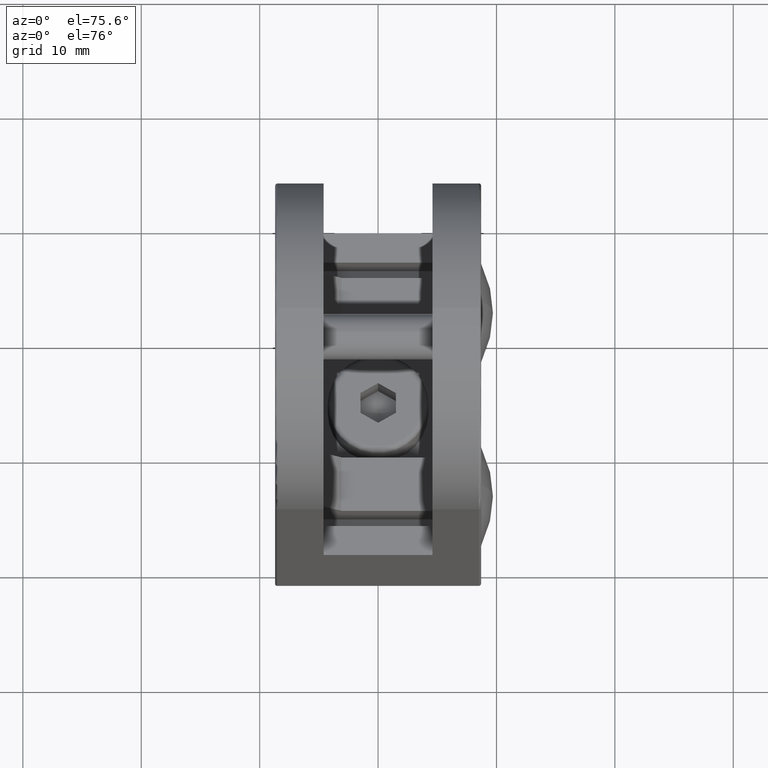
[diagram: clean part render]
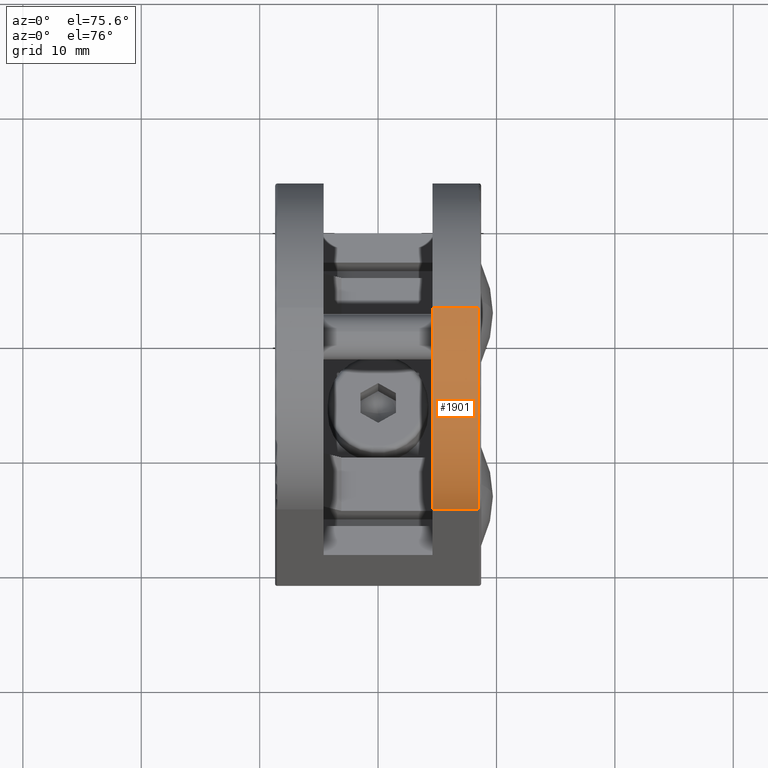
[diagram: same view with one face highlighted and labeled with its STEP entity id]
A machine part, auxiliary view. The second image highlights one B-rep face of the part: STEP entity #1901.
In plain terms, the highlighted cylindrical surface (partial cylindrical patch) has radius 14 mm, axis along (1, 0, 0).
Its self-contained STEP definition (entity closure, byte-faithful):
#38 = DIRECTION ( 'NONE',  ( 0.0000000000000000000, 0.0000000000000000000, -1.000000000000000000 ) ) ;
#78 = ORIENTED_EDGE ( 'NONE', *, *, #16158, .T. ) ;
#1901 = ADVANCED_FACE ( 'NONE', ( #3712 ), #35233, .T. ) ;
#3538 = CARTESIAN_POINT ( 'NONE',  ( 4.099999999999999600, 13.99999999999999300, 25.99999999999999600 ) ) ;
#3712 = FACE_OUTER_BOUND ( 'NONE', #30933, .T. ) ;
#6220 = VERTEX_POINT ( 'NONE', #36223 ) ;
#6718 = VERTEX_POINT ( 'NONE', #12840 ) ;
#7127 = AXIS2_PLACEMENT_3D ( 'NONE', #15586, #47908, #23879 ) ;
#7275 = VECTOR ( 'NONE', #18848, 1000.000000000000000 ) ;
#7876 = LINE ( 'NONE', #50805, #7275 ) ;
#8523 = CARTESIAN_POINT ( 'NONE',  ( 4.099999999999999600, 0.0000000000000000000, 25.99999999999999600 ) ) ;
#9286 = CIRCLE ( 'NONE', #31280, 13.99999999999999300 ) ;
#12840 = CARTESIAN_POINT ( 'NONE',  ( 0.2000000000000000900, 13.99999999999999300, 25.99999999999999600 ) ) ;
#14408 = CARTESIAN_POINT ( 'NONE',  ( 4.099999999999999600, 13.99999999999999300, 25.99999999999999600 ) ) ;
#15586 = CARTESIAN_POINT ( 'NONE',  ( 0.2000000000000000900, 0.0000000000000000000, 25.99999999999999600 ) ) ;
#16158 = EDGE_CURVE ( 'NONE', #31543, #6718, #28756, .T. ) ;
#17849 = EDGE_CURVE ( 'NONE', #6718, #43945, #45778, .T. ) ;
#18338 = AXIS2_PLACEMENT_3D ( 'NONE', #52023, #47831, #39522 ) ;
#18848 = DIRECTION ( 'NONE',  ( -1.000000000000000000, -0.0000000000000000000, -0.0000000000000000000 ) ) ;
#23677 = VECTOR ( 'NONE', #26777, 1000.000000000000000 ) ;
#23879 = DIRECTION ( 'NONE',  ( 0.0000000000000000000, 0.0000000000000000000, -1.000000000000000000 ) ) ;
#26777 = DIRECTION ( 'NONE',  ( -1.000000000000000000, -0.0000000000000000000, -0.0000000000000000000 ) ) ;
#28756 = LINE ( 'NONE', #14408, #23677 ) ;
#28816 = ORIENTED_EDGE ( 'NONE', *, *, #17849, .T. ) ;
#30933 = EDGE_LOOP ( 'NONE', ( #36016, #38678, #78, #28816 ) ) ;
#31280 = AXIS2_PLACEMENT_3D ( 'NONE', #8523, #48378, #38 ) ;
#31543 = VERTEX_POINT ( 'NONE', #3538 ) ;
#35233 = CYLINDRICAL_SURFACE ( 'NONE', #18338, 13.99999999999999100 ) ;
#36016 = ORIENTED_EDGE ( 'NONE', *, *, #47352, .F. ) ;
#36223 = CARTESIAN_POINT ( 'NONE',  ( 4.099999999999999600, 0.0000000000000000000, 39.99999999999999300 ) ) ;
#37481 = CARTESIAN_POINT ( 'NONE',  ( 0.2000000000000000900, 0.0000000000000000000, 39.99999999999999300 ) ) ;
#38678 = ORIENTED_EDGE ( 'NONE', *, *, #44120, .F. ) ;
#39522 = DIRECTION ( 'NONE',  ( 0.0000000000000000000, 0.0000000000000000000, 1.000000000000000000 ) ) ;
#43945 = VERTEX_POINT ( 'NONE', #37481 ) ;
#44120 = EDGE_CURVE ( 'NONE', #31543, #6220, #9286, .T. ) ;
#45778 = CIRCLE ( 'NONE', #7127, 13.99999999999999300 ) ;
#47352 = EDGE_CURVE ( 'NONE', #6220, #43945, #7876, .T. ) ;
#47831 = DIRECTION ( 'NONE',  ( -1.000000000000000000, -0.0000000000000000000, -0.0000000000000000000 ) ) ;
#47908 = DIRECTION ( 'NONE',  ( 1.000000000000000000, 0.0000000000000000000, 0.0000000000000000000 ) ) ;
#48378 = DIRECTION ( 'NONE',  ( 1.000000000000000000, 0.0000000000000000000, 0.0000000000000000000 ) ) ;
#50805 = CARTESIAN_POINT ( 'NONE',  ( 4.099999999999999600, 0.0000000000000000000, 39.99999999999998600 ) ) ;
#52023 = CARTESIAN_POINT ( 'NONE',  ( 4.099999999999999600, 0.0000000000000000000, 25.99999999999999600 ) ) ;